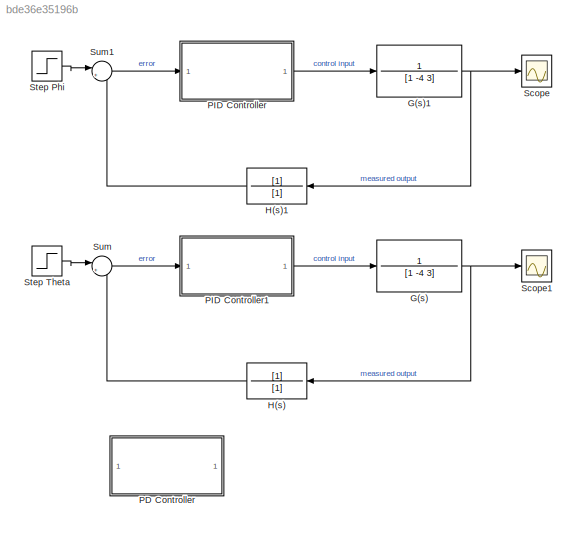
MODEL slx_bde36e35196b
KIND model
CONFIG AbsTol = auto
CONFIG EnableMultiTasking = on
CONFIG FixedStep = auto
CONFIG MaxStep = 0.01
CONFIG MinStep = auto
CONFIG RelTol = 1e-4
CONFIG SampleTimeConstraint = Unconstrained
CONFIG Solver = VariableStepAuto
CONFIG SolverName = VariableStepAuto
CONFIG StartTime = 0.0
CONFIG StopTime = 2
WORKSPACE source: MAT-file member
WORKSPACE MCOS: class17 (value not decoded)
BLOCK [TransferFcn] G(s)
  Denominator = [1 -4 3]
  Numerator = 1
BLOCK [TransferFcn] G(s)1
  Denominator = [1 -4 3]
  Numerator = 1
BLOCK [TransferFcn] H(s)
  Denominator = [1]
BLOCK [TransferFcn] H(s)1
  Denominator = [1]
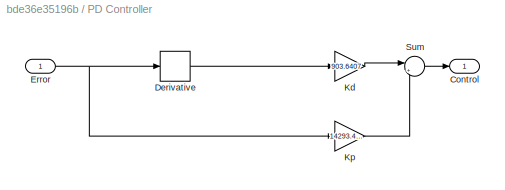
BLOCK [SubSystem] PD Controller
  Commented = on
  Ports = [1, 1]
  RequestExecContextInheritance = off
  Variant = off
BLOCK [Outport] PD Controller/Control
  IconDisplay = Port number
BLOCK [Derivative] PD Controller/Derivative
BLOCK [Inport] PD Controller/Error
  IconDisplay = Port number
BLOCK [Gain] PD Controller/Kd
  Gain = 903.6407
  OutDataTypeStr = Inherit: Inherit via internal rule
  ParamDataTypeStr = Inherit: Inherit via internal rule
  SaturateOnIntegerOverflow = off
BLOCK [Gain] PD Controller/Kp
  Gain = 14293.4747
  OutDataTypeStr = Inherit: Inherit via internal rule
  ParamDataTypeStr = Inherit: Inherit via internal rule
  SaturateOnIntegerOverflow = off
BLOCK [Sum] PD Controller/Sum
  IconShape = round
  InputSameDT = off
  Inputs = |++
  OutDataTypeStr = Inherit: Inherit via internal rule
  Ports = [2, 1]
  SaturateOnIntegerOverflow = off
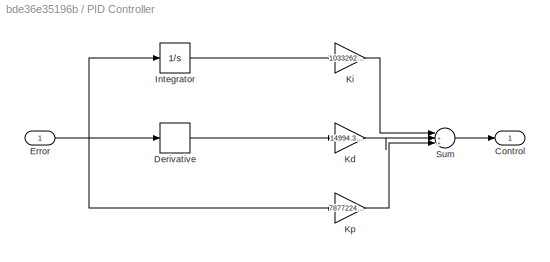
BLOCK [SubSystem] PID Controller
  Ports = [1, 1]
  RequestExecContextInheritance = off
  Variant = off
BLOCK [Outport] PID Controller/Control
  IconDisplay = Port number
BLOCK [Derivative] PID Controller/Derivative
BLOCK [Inport] PID Controller/Error
  IconDisplay = Port number
BLOCK [Integrator] PID Controller/Integrator
  Ports = [1, 1]
BLOCK [Gain] PID Controller/Kd
  Gain = 14994.315
  OutDataTypeStr = Inherit: Inherit via internal rule
  ParamDataTypeStr = Inherit: Inherit via internal rule
  SaturateOnIntegerOverflow = off
BLOCK [Gain] PID Controller/Ki
  Gain = 1033262529.7528
  OutDataTypeStr = Inherit: Inherit via internal rule
  ParamDataTypeStr = Inherit: Inherit via internal rule
  SaturateOnIntegerOverflow = off
BLOCK [Gain] PID Controller/Kp
  Gain = 78772245.8883
  OutDataTypeStr = Inherit: Inherit via internal rule
  ParamDataTypeStr = Inherit: Inherit via internal rule
  SaturateOnIntegerOverflow = off
BLOCK [Sum] PID Controller/Sum
  IconShape = round
  InputSameDT = off
  Inputs = |+++
  OutDataTypeStr = Inherit: Inherit via internal rule
  Ports = [3, 1]
  SaturateOnIntegerOverflow = off
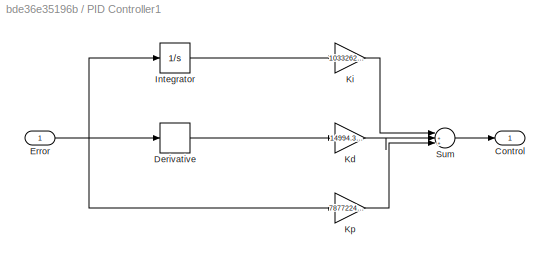
BLOCK [SubSystem] PID Controller1
  Ports = [1, 1]
  RequestExecContextInheritance = off
  Variant = off
BLOCK [Outport] PID Controller1/Control
  IconDisplay = Port number
BLOCK [Derivative] PID Controller1/Derivative
BLOCK [Inport] PID Controller1/Error
  IconDisplay = Port number
BLOCK [Integrator] PID Controller1/Integrator
  Ports = [1, 1]
BLOCK [Gain] PID Controller1/Kd
  Gain = 14994.315
  OutDataTypeStr = Inherit: Inherit via internal rule
  ParamDataTypeStr = Inherit: Inherit via internal rule
  SaturateOnIntegerOverflow = off
BLOCK [Gain] PID Controller1/Ki
  Gain = 1033262529.7528
  OutDataTypeStr = Inherit: Inherit via internal rule
  ParamDataTypeStr = Inherit: Inherit via internal rule
  SaturateOnIntegerOverflow = off
BLOCK [Gain] PID Controller1/Kp
  Gain = 78772245.8883
  OutDataTypeStr = Inherit: Inherit via internal rule
  ParamDataTypeStr = Inherit: Inherit via internal rule
  SaturateOnIntegerOverflow = off
BLOCK [Sum] PID Controller1/Sum
  IconShape = round
  InputSameDT = off
  Inputs = |+++
  OutDataTypeStr = Inherit: Inherit via internal rule
  Ports = [3, 1]
  SaturateOnIntegerOverflow = off
BLOCK [Scope] Scope
  NumInputPorts = 1
  Ports = [1]
  ScopeSpecificationString = Simulink.scopes.TimeScopeBlockCfg('CurrentConfiguration', extmgr.ConfigurationSet(extmgr.Configuration('Core','General UI',true),extmgr.Configuration('Core','Source UI',true),extmgr.Configuration('Sources','WiredSimulink',true),extmgr.Configuration('Visuals','Time Domain',true,'SerializedDisplays',{struct('MinYLimReal','-0.01092','MaxYLimReal','0.09832','YLabelReal','','MinYLimMag','0.00000','MaxY...<+1413ch>
BLOCK [Scope] Scope1
  NumInputPorts = 1
  Ports = [1]
  ScopeSpecificationString = Simulink.scopes.TimeScopeBlockCfg('CurrentConfiguration', extmgr.ConfigurationSet(extmgr.Configuration('Core','General UI',true),extmgr.Configuration('Core','Source UI',true),extmgr.Configuration('Sources','WiredSimulink',true,'DataLoggingVariableName','ScopeData1'),extmgr.Configuration('Visuals','Time Domain',true,'SerializedDisplays',{struct('MinYLimReal','-1.48676','MaxYLimReal','1.79833','YLab...<+1402ch>
BLOCK [Step] Step Phi
  SampleTime = 0
BLOCK [Step] Step Theta
  After = -1.1519
  Before = 1.4661
  SampleTime = 0
BLOCK [Sum] Sum
  IconShape = round
  InputSameDT = off
  Inputs = |+-
  OutDataTypeStr = Inherit: Inherit via internal rule
  Ports = [2, 1]
  SaturateOnIntegerOverflow = off
BLOCK [Sum] Sum1
  IconShape = round
  InputSameDT = off
  Inputs = |+-
  OutDataTypeStr = Inherit: Inherit via internal rule
  Ports = [2, 1]
  SaturateOnIntegerOverflow = off
NET G(s)1:1 -> H(s)1:1, Scope:1
NET G(s):1 -> H(s):1, Scope1:1
LINE H(s)1:1 -> Sum1:2
LINE H(s):1 -> Sum:2
LINE PD Controller/Derivative:1 -> PD Controller/Kd:1
NET PD Controller/Error:1 -> PD Controller/Derivative:1, PD Controller/Kp:1
LINE PD Controller/Kd:1 -> PD Controller/Sum:1
LINE PD Controller/Kp:1 -> PD Controller/Sum:2
LINE PD Controller/Sum:1 -> PD Controller/Control:1
LINE PID Controller/Derivative:1 -> PID Controller/Kd:1
NET PID Controller/Error:1 -> PID Controller/Derivative:1, PID Controller/Integrator:1, PID Controller/Kp:1
LINE PID Controller/Integrator:1 -> PID Controller/Ki:1
LINE PID Controller/Kd:1 -> PID Controller/Sum:2
LINE PID Controller/Ki:1 -> PID Controller/Sum:1
LINE PID Controller/Kp:1 -> PID Controller/Sum:3
LINE PID Controller/Sum:1 -> PID Controller/Control:1
LINE PID Controller1/Derivative:1 -> PID Controller1/Kd:1
NET PID Controller1/Error:1 -> PID Controller1/Derivative:1, PID Controller1/Integrator:1, PID Controller1/Kp:1
LINE PID Controller1/Integrator:1 -> PID Controller1/Ki:1
LINE PID Controller1/Kd:1 -> PID Controller1/Sum:2
LINE PID Controller1/Ki:1 -> PID Controller1/Sum:1
LINE PID Controller1/Kp:1 -> PID Controller1/Sum:3
LINE PID Controller1/Sum:1 -> PID Controller1/Control:1
LINE PID Controller1:1 -> G(s):1
LINE PID Controller:1 -> G(s)1:1
LINE Step Phi:1 -> Sum1:1
LINE Step Theta:1 -> Sum:1
LINE Sum1:1 -> PID Controller:1
LINE Sum:1 -> PID Controller1:1
note: NET lines group one-source signal fan-out (src -> all destinations, sorted); 1:1 wires keep LINE
